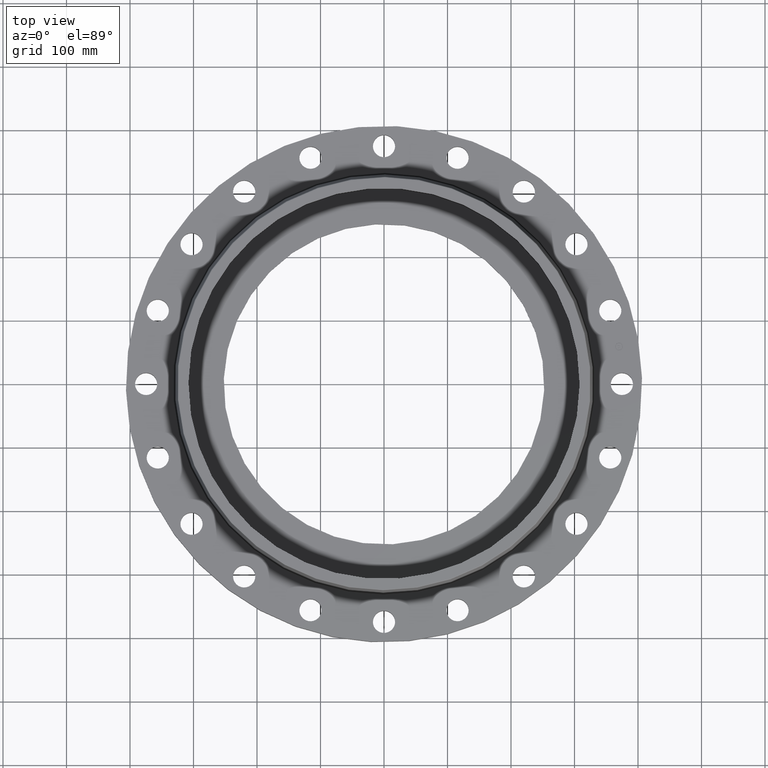
[diagram: clean part render]
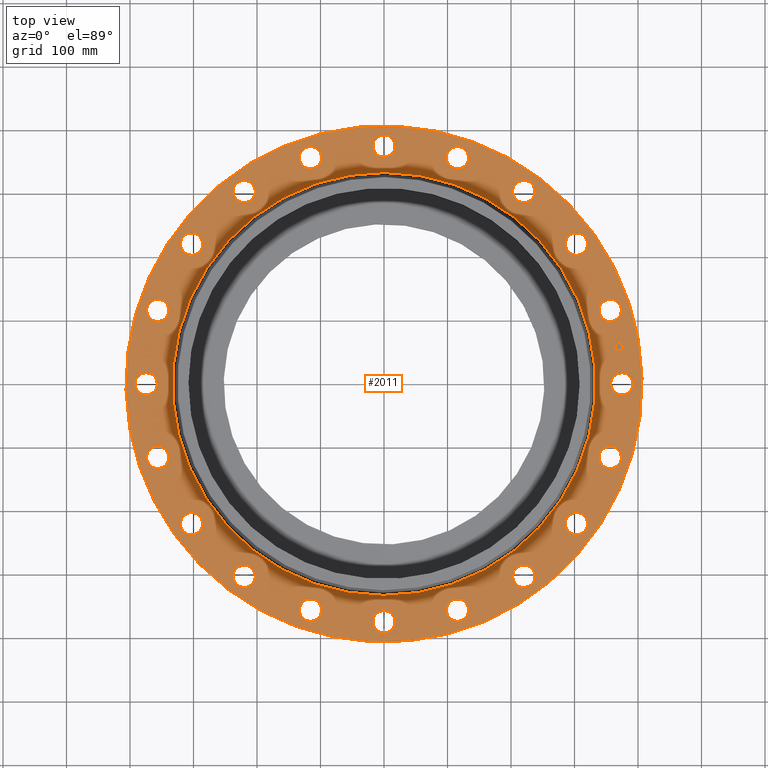
[diagram: same view with one face highlighted and labeled with its STEP entity id]
A machine part, top view. The second image highlights one B-rep face of the part: STEP entity #2011.
In plain terms, the highlighted planar face has unit normal (0, 0, -1).
Its self-contained STEP definition (entity closure, byte-faithful):
#673=AXIS2_PLACEMENT_3D('Circle Axis2P3D',#671,#672,$) ;
#692=AXIS2_PLACEMENT_3D('Circle Axis2P3D',#690,#691,$) ;
#723=AXIS2_PLACEMENT_3D('Circle Axis2P3D',#721,#722,$) ;
#735=AXIS2_PLACEMENT_3D('Circle Axis2P3D',#733,#734,$) ;
#766=AXIS2_PLACEMENT_3D('Circle Axis2P3D',#764,#765,$) ;
#778=AXIS2_PLACEMENT_3D('Circle Axis2P3D',#776,#777,$) ;
#809=AXIS2_PLACEMENT_3D('Circle Axis2P3D',#807,#808,$) ;
#821=AXIS2_PLACEMENT_3D('Circle Axis2P3D',#819,#820,$) ;
#852=AXIS2_PLACEMENT_3D('Circle Axis2P3D',#850,#851,$) ;
#864=AXIS2_PLACEMENT_3D('Circle Axis2P3D',#862,#863,$) ;
#895=AXIS2_PLACEMENT_3D('Circle Axis2P3D',#893,#894,$) ;
#907=AXIS2_PLACEMENT_3D('Circle Axis2P3D',#905,#906,$) ;
#938=AXIS2_PLACEMENT_3D('Circle Axis2P3D',#936,#937,$) ;
#950=AXIS2_PLACEMENT_3D('Circle Axis2P3D',#948,#949,$) ;
#981=AXIS2_PLACEMENT_3D('Circle Axis2P3D',#979,#980,$) ;
#993=AXIS2_PLACEMENT_3D('Circle Axis2P3D',#991,#992,$) ;
#1024=AXIS2_PLACEMENT_3D('Circle Axis2P3D',#1022,#1023,$) ;
#1036=AXIS2_PLACEMENT_3D('Circle Axis2P3D',#1034,#1035,$) ;
#1067=AXIS2_PLACEMENT_3D('Circle Axis2P3D',#1065,#1066,$) ;
#1079=AXIS2_PLACEMENT_3D('Circle Axis2P3D',#1077,#1078,$) ;
#1110=AXIS2_PLACEMENT_3D('Circle Axis2P3D',#1108,#1109,$) ;
#1122=AXIS2_PLACEMENT_3D('Circle Axis2P3D',#1120,#1121,$) ;
#1153=AXIS2_PLACEMENT_3D('Circle Axis2P3D',#1151,#1152,$) ;
#1165=AXIS2_PLACEMENT_3D('Circle Axis2P3D',#1163,#1164,$) ;
#1196=AXIS2_PLACEMENT_3D('Circle Axis2P3D',#1194,#1195,$) ;
#1208=AXIS2_PLACEMENT_3D('Circle Axis2P3D',#1206,#1207,$) ;
#1239=AXIS2_PLACEMENT_3D('Circle Axis2P3D',#1237,#1238,$) ;
#1251=AXIS2_PLACEMENT_3D('Circle Axis2P3D',#1249,#1250,$) ;
#1282=AXIS2_PLACEMENT_3D('Circle Axis2P3D',#1280,#1281,$) ;
#1294=AXIS2_PLACEMENT_3D('Circle Axis2P3D',#1292,#1293,$) ;
#1325=AXIS2_PLACEMENT_3D('Circle Axis2P3D',#1323,#1324,$) ;
#1337=AXIS2_PLACEMENT_3D('Circle Axis2P3D',#1335,#1336,$) ;
#1368=AXIS2_PLACEMENT_3D('Circle Axis2P3D',#1366,#1367,$) ;
#1380=AXIS2_PLACEMENT_3D('Circle Axis2P3D',#1378,#1379,$) ;
#1411=AXIS2_PLACEMENT_3D('Circle Axis2P3D',#1409,#1410,$) ;
#1423=AXIS2_PLACEMENT_3D('Circle Axis2P3D',#1421,#1422,$) ;
#1454=AXIS2_PLACEMENT_3D('Circle Axis2P3D',#1452,#1453,$) ;
#1466=AXIS2_PLACEMENT_3D('Circle Axis2P3D',#1464,#1465,$) ;
#1497=AXIS2_PLACEMENT_3D('Circle Axis2P3D',#1495,#1496,$) ;
#1509=AXIS2_PLACEMENT_3D('Circle Axis2P3D',#1507,#1508,$) ;
#1540=AXIS2_PLACEMENT_3D('Circle Axis2P3D',#1538,#1539,$) ;
#1552=AXIS2_PLACEMENT_3D('Circle Axis2P3D',#1550,#1551,$) ;
#1569=AXIS2_PLACEMENT_3D('Circle Axis2P3D',#1567,#1568,$) ;
#1604=AXIS2_PLACEMENT_3D('Circle Axis2P3D',#1602,#1603,$) ;
#1903=AXIS2_PLACEMENT_3D('Plane Axis2P3D',#1900,#1901,#1902) ;
#1995=AXIS2_PLACEMENT_3D('Circle Axis2P3D',#1993,#1994,$) ;
#2004=AXIS2_PLACEMENT_3D('Circle Axis2P3D',#2002,#2003,$) ;
#668=CARTESIAN_POINT('Vertex',(-7.6708086177,-14.0413209903,1.81000000001)) ;
#671=CARTESIAN_POINT('Axis2P3D Location',(0.,0.,1.81000000001)) ;
#675=CARTESIAN_POINT('Vertex',(7.6708086177,14.0413209903,1.81000000001)) ;
#690=CARTESIAN_POINT('Axis2P3D Location',(0.,0.,1.81000000001)) ;
#711=CARTESIAN_POINT('Vertex',(-3.87988160245,13.9005903441,1.81000000001)) ;
#718=CARTESIAN_POINT('Vertex',(-5.23611973165,14.1555768867,1.81000000001)) ;
#721=CARTESIAN_POINT('Axis2P3D Location',(-4.55800066705,14.0280836154,1.81000000001)) ;
#733=CARTESIAN_POINT('Axis2P3D Location',(-4.55800066705,14.0280836154,1.81000000001)) ;
#754=CARTESIAN_POINT('Vertex',(-7.98550532863,12.0212976758,1.81000000001)) ;
#761=CARTESIAN_POINT('Vertex',(-9.35415961406,11.8447036584,1.81000000001)) ;
#764=CARTESIAN_POINT('Axis2P3D Location',(-8.66983247135,11.9330006671,1.81000000001)) ;
#776=CARTESIAN_POINT('Axis2P3D Location',(-8.66983247135,11.9330006671,1.81000000001)) ;
#797=CARTESIAN_POINT('Vertex',(-11.309452155,8.96527663366,1.81000000001)) ;
#804=CARTESIAN_POINT('Vertex',(-12.5565491792,8.37438830904,1.81000000001)) ;
#807=CARTESIAN_POINT('Axis2P3D Location',(-11.9330006671,8.66983247135,1.81000000001)) ;
#819=CARTESIAN_POINT('Axis2P3D Location',(-11.9330006671,8.66983247135,1.81000000001)) ;
#840=CARTESIAN_POINT('Vertex',(-13.5263510068,5.03167184987,1.81000000001)) ;
#847=CARTESIAN_POINT('Vertex',(-14.529816224,4.08432948422,1.81000000001)) ;
#850=CARTESIAN_POINT('Axis2P3D Location',(-14.0280836154,4.55800066705,1.81000000001)) ;
#862=CARTESIAN_POINT('Axis2P3D Location',(-14.0280836154,4.55800066705,1.81000000001)) ;
#883=CARTESIAN_POINT('Vertex',(-14.4191963784,0.605531967707,1.81000000001)) ;
#890=CARTESIAN_POINT('Vertex',(-15.0808036217,-0.605531967707,1.81000000001)) ;
#893=CARTESIAN_POINT('Axis2P3D Location',(-14.7500000001,-1.58101627338E-014,1.81000000001)) ;
#905=CARTESIAN_POINT('Axis2P3D Location',(-14.7500000001,-1.58101627338E-014,1.81000000001)) ;
#926=CARTESIAN_POINT('Vertex',(-13.9005903441,-3.87988160245,1.81000000001)) ;
#933=CARTESIAN_POINT('Vertex',(-14.1555768867,-5.23611973165,1.81000000001)) ;
#936=CARTESIAN_POINT('Axis2P3D Location',(-14.0280836154,-4.55800066705,1.81000000001)) ;
#948=CARTESIAN_POINT('Axis2P3D Location',(-14.0280836154,-4.55800066705,1.81000000001)) ;
#969=CARTESIAN_POINT('Vertex',(-12.0212976758,-7.98550532863,1.81000000001)) ;
#976=CARTESIAN_POINT('Vertex',(-11.8447036584,-9.35415961406,1.81000000001)) ;
#979=CARTESIAN_POINT('Axis2P3D Location',(-11.9330006671,-8.66983247135,1.81000000001)) ;
#991=CARTESIAN_POINT('Axis2P3D Location',(-11.9330006671,-8.66983247135,1.81000000001)) ;
#1012=CARTESIAN_POINT('Vertex',(-8.96527663366,-11.309452155,1.81000000001)) ;
#1019=CARTESIAN_POINT('Vertex',(-8.37438830904,-12.5565491792,1.81000000001)) ;
#1022=CARTESIAN_POINT('Axis2P3D Location',(-8.66983247135,-11.9330006671,1.81000000001)) ;
#1034=CARTESIAN_POINT('Axis2P3D Location',(-8.66983247135,-11.9330006671,1.81000000001)) ;
#1055=CARTESIAN_POINT('Vertex',(-5.03167184987,-13.5263510068,1.81000000001)) ;
#1062=CARTESIAN_POINT('Vertex',(-4.08432948422,-14.529816224,1.81000000001)) ;
#1065=CARTESIAN_POINT('Axis2P3D Location',(-4.55800066705,-14.0280836154,1.81000000001)) ;
#1077=CARTESIAN_POINT('Axis2P3D Location',(-4.55800066705,-14.0280836154,1.81000000001)) ;
#1098=CARTESIAN_POINT('Vertex',(-0.605531967707,-14.4191963784,1.81000000001)) ;
#1105=CARTESIAN_POINT('Vertex',(0.605531967707,-15.0808036217,1.81000000001)) ;
#1108=CARTESIAN_POINT('Axis2P3D Location',(8.35666987406E-015,-14.7500000001,1.81000000001)) ;
#1120=CARTESIAN_POINT('Axis2P3D Location',(8.35666987406E-015,-14.7500000001,1.81000000001)) ;
#1141=CARTESIAN_POINT('Vertex',(3.87988160245,-13.9005903441,1.81000000001)) ;
#1148=CARTESIAN_POINT('Vertex',(5.23611973165,-14.1555768867,1.81000000001)) ;
#1151=CARTESIAN_POINT('Axis2P3D Location',(4.55800066705,-14.0280836154,1.81000000001)) ;
#1163=CARTESIAN_POINT('Axis2P3D Location',(4.55800066705,-14.0280836154,1.81000000001)) ;
#1184=CARTESIAN_POINT('Vertex',(7.98550532863,-12.0212976758,1.81000000001)) ;
#1191=CARTESIAN_POINT('Vertex',(9.35415961406,-11.8447036584,1.81000000001)) ;
#1194=CARTESIAN_POINT('Axis2P3D Location',(8.66983247135,-11.9330006671,1.81000000001)) ;
#1206=CARTESIAN_POINT('Axis2P3D Location',(8.66983247135,-11.9330006671,1.81000000001)) ;
#1227=CARTESIAN_POINT('Vertex',(11.309452155,-8.96527663366,1.81000000001)) ;
#1234=CARTESIAN_POINT('Vertex',(12.5565491792,-8.37438830904,1.81000000001)) ;
#1237=CARTESIAN_POINT('Axis2P3D Location',(11.9330006671,-8.66983247135,1.81000000001)) ;
#1249=CARTESIAN_POINT('Axis2P3D Location',(11.9330006671,-8.66983247135,1.81000000001)) ;
#1270=CARTESIAN_POINT('Vertex',(13.5263510068,-5.03167184987,1.81000000001)) ;
#1277=CARTESIAN_POINT('Vertex',(14.529816224,-4.08432948422,1.81000000001)) ;
#1280=CARTESIAN_POINT('Axis2P3D Location',(14.0280836154,-4.55800066705,1.81000000001)) ;
#1292=CARTESIAN_POINT('Axis2P3D Location',(14.0280836154,-4.55800066705,1.81000000001)) ;
#1313=CARTESIAN_POINT('Vertex',(14.4191963784,-0.605531967707,1.81000000001)) ;
#1320=CARTESIAN_POINT('Vertex',(15.0808036217,0.605531967707,1.81000000001)) ;
#1323=CARTESIAN_POINT('Axis2P3D Location',(14.7500000001,4.17833493703E-015,1.81000000001)) ;
#1335=CARTESIAN_POINT('Axis2P3D Location',(14.7500000001,4.17833493703E-015,1.81000000001)) ;
#1356=CARTESIAN_POINT('Vertex',(13.9005903441,3.87988160245,1.81000000001)) ;
#1363=CARTESIAN_POINT('Vertex',(14.1555768867,5.23611973165,1.81000000001)) ;
#1366=CARTESIAN_POINT('Axis2P3D Location',(14.0280836154,4.55800066705,1.81000000001)) ;
#1378=CARTESIAN_POINT('Axis2P3D Location',(14.0280836154,4.55800066705,1.81000000001)) ;
#1399=CARTESIAN_POINT('Vertex',(12.0212976758,7.98550532863,1.81000000001)) ;
#1406=CARTESIAN_POINT('Vertex',(11.8447036584,9.35415961406,1.81000000001)) ;
#1409=CARTESIAN_POINT('Axis2P3D Location',(11.9330006671,8.66983247135,1.81000000001)) ;
#1421=CARTESIAN_POINT('Axis2P3D Location',(11.9330006671,8.66983247135,1.81000000001)) ;
#1442=CARTESIAN_POINT('Vertex',(8.96527663366,11.309452155,1.81000000001)) ;
#1449=CARTESIAN_POINT('Vertex',(8.37438830904,12.5565491792,1.81000000001)) ;
#1452=CARTESIAN_POINT('Axis2P3D Location',(8.66983247135,11.9330006671,1.81000000001)) ;
#1464=CARTESIAN_POINT('Axis2P3D Location',(8.66983247135,11.9330006671,1.81000000001)) ;
#1485=CARTESIAN_POINT('Vertex',(5.03167184987,13.5263510068,1.81000000001)) ;
#1492=CARTESIAN_POINT('Vertex',(4.08432948422,14.529816224,1.81000000001)) ;
#1495=CARTESIAN_POINT('Axis2P3D Location',(4.55800066705,14.0280836154,1.81000000001)) ;
#1507=CARTESIAN_POINT('Axis2P3D Location',(4.55800066705,14.0280836154,1.81000000001)) ;
#1528=CARTESIAN_POINT('Vertex',(-0.605531967707,15.0808036217,1.81000000001)) ;
#1535=CARTESIAN_POINT('Vertex',(0.605531967707,14.4191963784,1.81000000001)) ;
#1538=CARTESIAN_POINT('Axis2P3D Location',(0.,14.7500000001,1.81000000001)) ;
#1550=CARTESIAN_POINT('Axis2P3D Location',(0.,14.7500000001,1.81000000001)) ;
#1567=CARTESIAN_POINT('Axis2P3D Location',(0.,0.,1.81000000001)) ;
#1571=CARTESIAN_POINT('Vertex',(6.28543468175,11.5054110106,1.81000000001)) ;
#1573=CARTESIAN_POINT('Vertex',(-6.28543468175,-11.5054110106,1.81000000001)) ;
#1602=CARTESIAN_POINT('Axis2P3D Location',(0.,0.,1.81000000001)) ;
#1900=CARTESIAN_POINT('Axis2P3D Location',(0.,16.0000000001,1.81000000001)) ;
#1993=CARTESIAN_POINT('Axis2P3D Location',(14.5684030238,2.30740835935,1.81000000001)) ;
#1997=CARTESIAN_POINT('Vertex',(14.5296854937,2.55186122365,1.81000000001)) ;
#1999=CARTESIAN_POINT('Vertex',(14.6071205539,2.06295549505,1.81000000001)) ;
#2002=CARTESIAN_POINT('Axis2P3D Location',(14.5684030238,2.30740835935,1.81000000001)) ;
#672=DIRECTION('Axis2P3D Direction',(0.,0.,-0.0393700787402)) ;
#691=DIRECTION('Axis2P3D Direction',(0.,0.,-0.0393700787402)) ;
#722=DIRECTION('Axis2P3D Direction',(0.,0.,-0.0393700787402)) ;
#734=DIRECTION('Axis2P3D Direction',(0.,0.,-0.0393700787402)) ;
#765=DIRECTION('Axis2P3D Direction',(0.,0.,-0.0393700787402)) ;
#777=DIRECTION('Axis2P3D Direction',(0.,0.,-0.0393700787402)) ;
#808=DIRECTION('Axis2P3D Direction',(0.,0.,-0.0393700787402)) ;
#820=DIRECTION('Axis2P3D Direction',(0.,0.,-0.0393700787402)) ;
#851=DIRECTION('Axis2P3D Direction',(0.,0.,-0.0393700787402)) ;
#863=DIRECTION('Axis2P3D Direction',(0.,0.,-0.0393700787402)) ;
#894=DIRECTION('Axis2P3D Direction',(0.,0.,-0.0393700787402)) ;
#906=DIRECTION('Axis2P3D Direction',(0.,0.,-0.0393700787402)) ;
#937=DIRECTION('Axis2P3D Direction',(0.,0.,-0.0393700787402)) ;
#949=DIRECTION('Axis2P3D Direction',(0.,0.,-0.0393700787402)) ;
#980=DIRECTION('Axis2P3D Direction',(0.,0.,-0.0393700787402)) ;
#992=DIRECTION('Axis2P3D Direction',(0.,0.,-0.0393700787402)) ;
#1023=DIRECTION('Axis2P3D Direction',(0.,0.,-0.0393700787402)) ;
#1035=DIRECTION('Axis2P3D Direction',(0.,0.,-0.0393700787402)) ;
#1066=DIRECTION('Axis2P3D Direction',(0.,0.,-0.0393700787402)) ;
#1078=DIRECTION('Axis2P3D Direction',(0.,0.,-0.0393700787402)) ;
#1109=DIRECTION('Axis2P3D Direction',(-0.,0.,-0.0393700787402)) ;
#1121=DIRECTION('Axis2P3D Direction',(-0.,0.,-0.0393700787402)) ;
#1152=DIRECTION('Axis2P3D Direction',(-0.,0.,-0.0393700787402)) ;
#1164=DIRECTION('Axis2P3D Direction',(-0.,0.,-0.0393700787402)) ;
#1195=DIRECTION('Axis2P3D Direction',(-0.,0.,-0.0393700787402)) ;
#1207=DIRECTION('Axis2P3D Direction',(-0.,0.,-0.0393700787402)) ;
#1238=DIRECTION('Axis2P3D Direction',(-0.,0.,-0.0393700787402)) ;
#1250=DIRECTION('Axis2P3D Direction',(-0.,0.,-0.0393700787402)) ;
#1281=DIRECTION('Axis2P3D Direction',(-0.,0.,-0.0393700787402)) ;
#1293=DIRECTION('Axis2P3D Direction',(-0.,0.,-0.0393700787402)) ;
#1324=DIRECTION('Axis2P3D Direction',(0.,-0.,-0.0393700787402)) ;
#1336=DIRECTION('Axis2P3D Direction',(0.,-0.,-0.0393700787402)) ;
#1367=DIRECTION('Axis2P3D Direction',(0.,-0.,-0.0393700787402)) ;
#1379=DIRECTION('Axis2P3D Direction',(0.,-0.,-0.0393700787402)) ;
#1410=DIRECTION('Axis2P3D Direction',(0.,-0.,-0.0393700787402)) ;
#1422=DIRECTION('Axis2P3D Direction',(0.,-0.,-0.0393700787402)) ;
#1453=DIRECTION('Axis2P3D Direction',(0.,-0.,-0.0393700787402)) ;
#1465=DIRECTION('Axis2P3D Direction',(0.,-0.,-0.0393700787402)) ;
#1496=DIRECTION('Axis2P3D Direction',(0.,-0.,-0.0393700787402)) ;
#1508=DIRECTION('Axis2P3D Direction',(0.,-0.,-0.0393700787402)) ;
#1539=DIRECTION('Axis2P3D Direction',(0.,-0.,-0.0393700787402)) ;
#1551=DIRECTION('Axis2P3D Direction',(0.,-0.,-0.0393700787402)) ;
#1568=DIRECTION('Axis2P3D Direction',(0.,0.,-0.0393700787402)) ;
#1603=DIRECTION('Axis2P3D Direction',(0.,0.,-0.0393700787402)) ;
#1901=DIRECTION('Axis2P3D Direction',(0.,0.,-0.0393700787402)) ;
#1902=DIRECTION('Axis2P3D XDirection',(0.0393700787402,0.,0.)) ;
#1994=DIRECTION('Axis2P3D Direction',(0.,0.,-0.0393700787402)) ;
#2003=DIRECTION('Axis2P3D Direction',(0.,0.,-0.0393700787402)) ;
#1906=ORIENTED_EDGE('',*,*,#694,.F.) ;
#1907=ORIENTED_EDGE('',*,*,#677,.F.) ;
#1910=ORIENTED_EDGE('',*,*,#1542,.T.) ;
#1911=ORIENTED_EDGE('',*,*,#1554,.T.) ;
#1914=ORIENTED_EDGE('',*,*,#1606,.T.) ;
#1915=ORIENTED_EDGE('',*,*,#1575,.T.) ;
#1918=ORIENTED_EDGE('',*,*,#1499,.T.) ;
#1919=ORIENTED_EDGE('',*,*,#1511,.T.) ;
#1922=ORIENTED_EDGE('',*,*,#1456,.T.) ;
#1923=ORIENTED_EDGE('',*,*,#1468,.T.) ;
#1926=ORIENTED_EDGE('',*,*,#1413,.T.) ;
#1927=ORIENTED_EDGE('',*,*,#1425,.T.) ;
#1930=ORIENTED_EDGE('',*,*,#1370,.T.) ;
#1931=ORIENTED_EDGE('',*,*,#1382,.T.) ;
#1934=ORIENTED_EDGE('',*,*,#1327,.T.) ;
#1935=ORIENTED_EDGE('',*,*,#1339,.T.) ;
#1938=ORIENTED_EDGE('',*,*,#1284,.T.) ;
#1939=ORIENTED_EDGE('',*,*,#1296,.T.) ;
#1942=ORIENTED_EDGE('',*,*,#1241,.T.) ;
#1943=ORIENTED_EDGE('',*,*,#1253,.T.) ;
#1946=ORIENTED_EDGE('',*,*,#1198,.T.) ;
#1947=ORIENTED_EDGE('',*,*,#1210,.T.) ;
#1950=ORIENTED_EDGE('',*,*,#1155,.T.) ;
#1951=ORIENTED_EDGE('',*,*,#1167,.T.) ;
#1954=ORIENTED_EDGE('',*,*,#1112,.T.) ;
#1955=ORIENTED_EDGE('',*,*,#1124,.T.) ;
#1958=ORIENTED_EDGE('',*,*,#1069,.T.) ;
#1959=ORIENTED_EDGE('',*,*,#1081,.T.) ;
#1962=ORIENTED_EDGE('',*,*,#1026,.T.) ;
#1963=ORIENTED_EDGE('',*,*,#1038,.T.) ;
#1966=ORIENTED_EDGE('',*,*,#983,.T.) ;
#1967=ORIENTED_EDGE('',*,*,#995,.T.) ;
#1970=ORIENTED_EDGE('',*,*,#940,.T.) ;
#1971=ORIENTED_EDGE('',*,*,#952,.T.) ;
#1974=ORIENTED_EDGE('',*,*,#897,.T.) ;
#1975=ORIENTED_EDGE('',*,*,#909,.T.) ;
#1978=ORIENTED_EDGE('',*,*,#854,.T.) ;
#1979=ORIENTED_EDGE('',*,*,#866,.T.) ;
#1982=ORIENTED_EDGE('',*,*,#811,.T.) ;
#1983=ORIENTED_EDGE('',*,*,#823,.T.) ;
#1986=ORIENTED_EDGE('',*,*,#768,.T.) ;
#1987=ORIENTED_EDGE('',*,*,#780,.T.) ;
#1990=ORIENTED_EDGE('',*,*,#725,.T.) ;
#1991=ORIENTED_EDGE('',*,*,#737,.T.) ;
#2008=ORIENTED_EDGE('',*,*,#2001,.T.) ;
#2009=ORIENTED_EDGE('',*,*,#2006,.T.) ;
#1912=FACE_BOUND('',#1909,.T.) ;
#1916=FACE_BOUND('',#1913,.T.) ;
#1920=FACE_BOUND('',#1917,.T.) ;
#1924=FACE_BOUND('',#1921,.T.) ;
#1928=FACE_BOUND('',#1925,.T.) ;
#1932=FACE_BOUND('',#1929,.T.) ;
#1936=FACE_BOUND('',#1933,.T.) ;
#1940=FACE_BOUND('',#1937,.T.) ;
#1944=FACE_BOUND('',#1941,.T.) ;
#1948=FACE_BOUND('',#1945,.T.) ;
#1952=FACE_BOUND('',#1949,.T.) ;
#1956=FACE_BOUND('',#1953,.T.) ;
#1960=FACE_BOUND('',#1957,.T.) ;
#1964=FACE_BOUND('',#1961,.T.) ;
#1968=FACE_BOUND('',#1965,.T.) ;
#1972=FACE_BOUND('',#1969,.T.) ;
#1976=FACE_BOUND('',#1973,.T.) ;
#1980=FACE_BOUND('',#1977,.T.) ;
#1984=FACE_BOUND('',#1981,.T.) ;
#1988=FACE_BOUND('',#1985,.T.) ;
#1992=FACE_BOUND('',#1989,.T.) ;
#2010=FACE_BOUND('',#2007,.T.) ;
#2011=ADVANCED_FACE('PartBody',(#1908,#1912,#1916,#1920,#1924,#1928,#1932,#1936,#1940,#1944,#1948,#1952,#1956,#1960,#1964,#1968,#1972,#1976,#1980,#1984,#1988,#1992,#2010),#1904,.F.) ;
#674=CIRCLE('generated circle',#673,16.0000000001) ;
#693=CIRCLE('generated circle',#692,16.0000000001) ;
#724=CIRCLE('generated circle',#723,0.690000000003) ;
#736=CIRCLE('generated circle',#735,0.690000000003) ;
#767=CIRCLE('generated circle',#766,0.690000000003) ;
#779=CIRCLE('generated circle',#778,0.690000000003) ;
#810=CIRCLE('generated circle',#809,0.690000000003) ;
#822=CIRCLE('generated circle',#821,0.690000000003) ;
#853=CIRCLE('generated circle',#852,0.690000000003) ;
#865=CIRCLE('generated circle',#864,0.690000000003) ;
#896=CIRCLE('generated circle',#895,0.690000000003) ;
#908=CIRCLE('generated circle',#907,0.690000000003) ;
#939=CIRCLE('generated circle',#938,0.690000000003) ;
#951=CIRCLE('generated circle',#950,0.690000000003) ;
#982=CIRCLE('generated circle',#981,0.690000000003) ;
#994=CIRCLE('generated circle',#993,0.690000000003) ;
#1025=CIRCLE('generated circle',#1024,0.690000000003) ;
#1037=CIRCLE('generated circle',#1036,0.690000000003) ;
#1068=CIRCLE('generated circle',#1067,0.690000000003) ;
#1080=CIRCLE('generated circle',#1079,0.690000000003) ;
#1111=CIRCLE('generated circle',#1110,0.690000000003) ;
#1123=CIRCLE('generated circle',#1122,0.690000000003) ;
#1154=CIRCLE('generated circle',#1153,0.690000000003) ;
#1166=CIRCLE('generated circle',#1165,0.690000000003) ;
#1197=CIRCLE('generated circle',#1196,0.690000000003) ;
#1209=CIRCLE('generated circle',#1208,0.690000000003) ;
#1240=CIRCLE('generated circle',#1239,0.690000000003) ;
#1252=CIRCLE('generated circle',#1251,0.690000000003) ;
#1283=CIRCLE('generated circle',#1282,0.690000000003) ;
#1295=CIRCLE('generated circle',#1294,0.690000000003) ;
#1326=CIRCLE('generated circle',#1325,0.690000000003) ;
#1338=CIRCLE('generated circle',#1337,0.690000000003) ;
#1369=CIRCLE('generated circle',#1368,0.690000000003) ;
#1381=CIRCLE('generated circle',#1380,0.690000000003) ;
#1412=CIRCLE('generated circle',#1411,0.690000000003) ;
#1424=CIRCLE('generated circle',#1423,0.690000000003) ;
#1455=CIRCLE('generated circle',#1454,0.690000000003) ;
#1467=CIRCLE('generated circle',#1466,0.690000000003) ;
#1498=CIRCLE('generated circle',#1497,0.690000000003) ;
#1510=CIRCLE('generated circle',#1509,0.690000000003) ;
#1541=CIRCLE('generated circle',#1540,0.690000000003) ;
#1553=CIRCLE('generated circle',#1552,0.690000000003) ;
#1570=CIRCLE('generated circle',#1569,13.1103459779) ;
#1605=CIRCLE('generated circle',#1604,13.1103459779) ;
#1996=CIRCLE('generated circle',#1995,0.247500000001) ;
#2005=CIRCLE('generated circle',#2004,0.247500000001) ;
#677=EDGE_CURVE('',#669,#676,#674,.T.) ;
#694=EDGE_CURVE('',#676,#669,#693,.T.) ;
#725=EDGE_CURVE('',#712,#719,#724,.T.) ;
#737=EDGE_CURVE('',#719,#712,#736,.T.) ;
#768=EDGE_CURVE('',#755,#762,#767,.T.) ;
#780=EDGE_CURVE('',#762,#755,#779,.T.) ;
#811=EDGE_CURVE('',#798,#805,#810,.T.) ;
#823=EDGE_CURVE('',#805,#798,#822,.T.) ;
#854=EDGE_CURVE('',#841,#848,#853,.T.) ;
#866=EDGE_CURVE('',#848,#841,#865,.T.) ;
#897=EDGE_CURVE('',#884,#891,#896,.T.) ;
#909=EDGE_CURVE('',#891,#884,#908,.T.) ;
#940=EDGE_CURVE('',#927,#934,#939,.T.) ;
#952=EDGE_CURVE('',#934,#927,#951,.T.) ;
#983=EDGE_CURVE('',#970,#977,#982,.T.) ;
#995=EDGE_CURVE('',#977,#970,#994,.T.) ;
#1026=EDGE_CURVE('',#1013,#1020,#1025,.T.) ;
#1038=EDGE_CURVE('',#1020,#1013,#1037,.T.) ;
#1069=EDGE_CURVE('',#1056,#1063,#1068,.T.) ;
#1081=EDGE_CURVE('',#1063,#1056,#1080,.T.) ;
#1112=EDGE_CURVE('',#1099,#1106,#1111,.T.) ;
#1124=EDGE_CURVE('',#1106,#1099,#1123,.T.) ;
#1155=EDGE_CURVE('',#1142,#1149,#1154,.T.) ;
#1167=EDGE_CURVE('',#1149,#1142,#1166,.T.) ;
#1198=EDGE_CURVE('',#1185,#1192,#1197,.T.) ;
#1210=EDGE_CURVE('',#1192,#1185,#1209,.T.) ;
#1241=EDGE_CURVE('',#1228,#1235,#1240,.T.) ;
#1253=EDGE_CURVE('',#1235,#1228,#1252,.T.) ;
#1284=EDGE_CURVE('',#1271,#1278,#1283,.T.) ;
#1296=EDGE_CURVE('',#1278,#1271,#1295,.T.) ;
#1327=EDGE_CURVE('',#1314,#1321,#1326,.T.) ;
#1339=EDGE_CURVE('',#1321,#1314,#1338,.T.) ;
#1370=EDGE_CURVE('',#1357,#1364,#1369,.T.) ;
#1382=EDGE_CURVE('',#1364,#1357,#1381,.T.) ;
#1413=EDGE_CURVE('',#1400,#1407,#1412,.T.) ;
#1425=EDGE_CURVE('',#1407,#1400,#1424,.T.) ;
#1456=EDGE_CURVE('',#1443,#1450,#1455,.T.) ;
#1468=EDGE_CURVE('',#1450,#1443,#1467,.T.) ;
#1499=EDGE_CURVE('',#1486,#1493,#1498,.T.) ;
#1511=EDGE_CURVE('',#1493,#1486,#1510,.T.) ;
#1542=EDGE_CURVE('',#1529,#1536,#1541,.T.) ;
#1554=EDGE_CURVE('',#1536,#1529,#1553,.T.) ;
#1575=EDGE_CURVE('',#1572,#1574,#1570,.T.) ;
#1606=EDGE_CURVE('',#1574,#1572,#1605,.T.) ;
#2001=EDGE_CURVE('',#1998,#2000,#1996,.T.) ;
#2006=EDGE_CURVE('',#2000,#1998,#2005,.T.) ;
#1905=EDGE_LOOP('',(#1906,#1907)) ;
#1909=EDGE_LOOP('',(#1910,#1911)) ;
#1913=EDGE_LOOP('',(#1914,#1915)) ;
#1917=EDGE_LOOP('',(#1918,#1919)) ;
#1921=EDGE_LOOP('',(#1922,#1923)) ;
#1925=EDGE_LOOP('',(#1926,#1927)) ;
#1929=EDGE_LOOP('',(#1930,#1931)) ;
#1933=EDGE_LOOP('',(#1934,#1935)) ;
#1937=EDGE_LOOP('',(#1938,#1939)) ;
#1941=EDGE_LOOP('',(#1942,#1943)) ;
#1945=EDGE_LOOP('',(#1946,#1947)) ;
#1949=EDGE_LOOP('',(#1950,#1951)) ;
#1953=EDGE_LOOP('',(#1954,#1955)) ;
#1957=EDGE_LOOP('',(#1958,#1959)) ;
#1961=EDGE_LOOP('',(#1962,#1963)) ;
#1965=EDGE_LOOP('',(#1966,#1967)) ;
#1969=EDGE_LOOP('',(#1970,#1971)) ;
#1973=EDGE_LOOP('',(#1974,#1975)) ;
#1977=EDGE_LOOP('',(#1978,#1979)) ;
#1981=EDGE_LOOP('',(#1982,#1983)) ;
#1985=EDGE_LOOP('',(#1986,#1987)) ;
#1989=EDGE_LOOP('',(#1990,#1991)) ;
#2007=EDGE_LOOP('',(#2008,#2009)) ;
#1908=FACE_OUTER_BOUND('',#1905,.T.) ;
#1904=PLANE('',#1903) ;
#669=VERTEX_POINT('',#668) ;
#676=VERTEX_POINT('',#675) ;
#712=VERTEX_POINT('',#711) ;
#719=VERTEX_POINT('',#718) ;
#755=VERTEX_POINT('',#754) ;
#762=VERTEX_POINT('',#761) ;
#798=VERTEX_POINT('',#797) ;
#805=VERTEX_POINT('',#804) ;
#841=VERTEX_POINT('',#840) ;
#848=VERTEX_POINT('',#847) ;
#884=VERTEX_POINT('',#883) ;
#891=VERTEX_POINT('',#890) ;
#927=VERTEX_POINT('',#926) ;
#934=VERTEX_POINT('',#933) ;
#970=VERTEX_POINT('',#969) ;
#977=VERTEX_POINT('',#976) ;
#1013=VERTEX_POINT('',#1012) ;
#1020=VERTEX_POINT('',#1019) ;
#1056=VERTEX_POINT('',#1055) ;
#1063=VERTEX_POINT('',#1062) ;
#1099=VERTEX_POINT('',#1098) ;
#1106=VERTEX_POINT('',#1105) ;
#1142=VERTEX_POINT('',#1141) ;
#1149=VERTEX_POINT('',#1148) ;
#1185=VERTEX_POINT('',#1184) ;
#1192=VERTEX_POINT('',#1191) ;
#1228=VERTEX_POINT('',#1227) ;
#1235=VERTEX_POINT('',#1234) ;
#1271=VERTEX_POINT('',#1270) ;
#1278=VERTEX_POINT('',#1277) ;
#1314=VERTEX_POINT('',#1313) ;
#1321=VERTEX_POINT('',#1320) ;
#1357=VERTEX_POINT('',#1356) ;
#1364=VERTEX_POINT('',#1363) ;
#1400=VERTEX_POINT('',#1399) ;
#1407=VERTEX_POINT('',#1406) ;
#1443=VERTEX_POINT('',#1442) ;
#1450=VERTEX_POINT('',#1449) ;
#1486=VERTEX_POINT('',#1485) ;
#1493=VERTEX_POINT('',#1492) ;
#1529=VERTEX_POINT('',#1528) ;
#1536=VERTEX_POINT('',#1535) ;
#1572=VERTEX_POINT('',#1571) ;
#1574=VERTEX_POINT('',#1573) ;
#1998=VERTEX_POINT('',#1997) ;
#2000=VERTEX_POINT('',#1999) ;